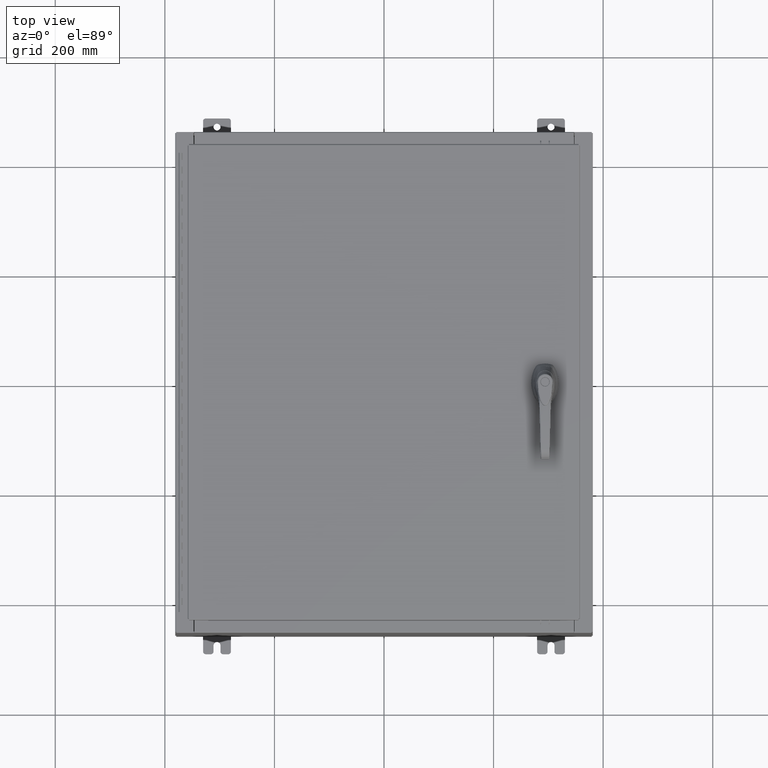
[diagram: clean part render]
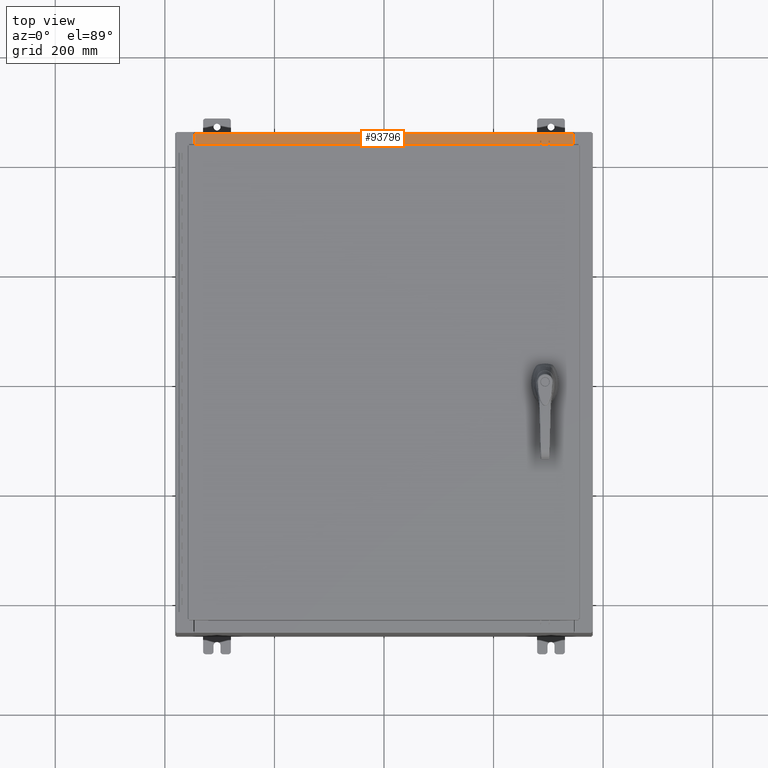
[diagram: same view with one face highlighted and labeled with its STEP entity id]
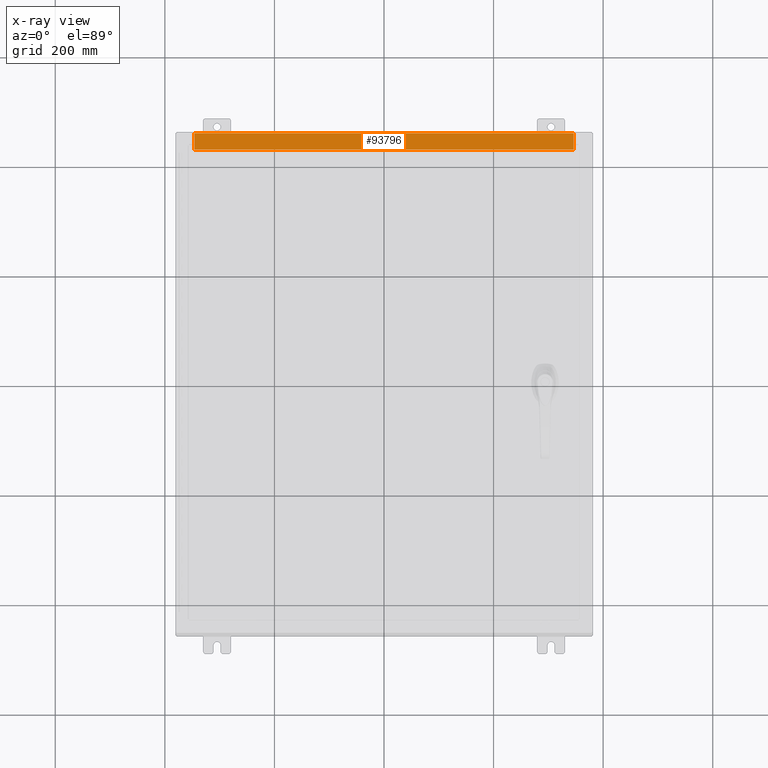
[diagram: x-ray of the same camera — body ghosted, the highlighted face saturated]
A machine part, top view. The second image highlights one B-rep face of the part: STEP entity #93796.
The next image is the same camera in x-ray: the body ghosted, the highlighted face saturated — about 0% of this face is hidden behind the body in this view.
In plain terms, the highlighted planar face has unit normal (0, 0, 1).
Its self-contained STEP definition (entity closure, byte-faithful):
#398 = VECTOR ( 'NONE', #67468, 39.37007874015748100 ) ;
#5646 = VERTEX_POINT ( 'NONE', #11962 ) ;
#7555 = PLANE ( 'NONE',  #33632 ) ;
#11364 = EDGE_CURVE ( 'NONE', #111070, #79480, #78021, .T. ) ;
#11962 = CARTESIAN_POINT ( 'NONE',  ( 13.63720000000000400, -0.08769999999999829300, 7.999999999999997300 ) ) ;
#15096 = VECTOR ( 'NONE', #101220, 39.37007874015748100 ) ;
#20067 = LINE ( 'NONE', #55751, #67924 ) ;
#20504 = CARTESIAN_POINT ( 'NONE',  ( -13.63719999999999800, -0.08769999999999862600, 8.000000000000000000 ) ) ;
#21919 = EDGE_CURVE ( 'NONE', #5646, #103605, #20067, .T. ) ;
#28567 = ORIENTED_EDGE ( 'NONE', *, *, #85919, .F. ) ;
#33632 = AXIS2_PLACEMENT_3D ( 'NONE', #55344, #73382, #74637 ) ;
#38997 = CARTESIAN_POINT ( 'NONE',  ( 13.63720000000000400, -1.300299999999999800, 8.000000000000001800 ) ) ;
#39862 = DIRECTION ( 'NONE',  ( -0.0000000000000000000, 1.000000000000000000, -3.566381192773190000E-015 ) ) ;
#40361 = VECTOR ( 'NONE', #39862, 39.37007874015748100 ) ;
#49682 = ORIENTED_EDGE ( 'NONE', *, *, #21919, .T. ) ;
#55344 = CARTESIAN_POINT ( 'NONE',  ( 6.405177647445352000E-016, 2.852545452309694500E-014, 7.999999999999999100 ) ) ;
#55751 = CARTESIAN_POINT ( 'NONE',  ( 6.299767562217697500E-016, -0.08769999999999862600, 7.999999999999999100 ) ) ;
#67468 = DIRECTION ( 'NONE',  ( -0.0000000000000000000, -1.000000000000000000, 3.566381192773190000E-015 ) ) ;
#67924 = VECTOR ( 'NONE', #84709, 39.37007874015748100 ) ;
#72653 = ORIENTED_EDGE ( 'NONE', *, *, #11364, .F. ) ;
#73382 = DIRECTION ( 'NONE',  ( 8.012929321750104000E-017, 3.566381192773190000E-015, 1.000000000000000000 ) ) ;
#74044 = CARTESIAN_POINT ( 'NONE',  ( -13.63719999999999800, -1.287299999999999400, 8.000000000000003600 ) ) ;
#74637 = DIRECTION ( 'NONE',  ( 0.0000000000000000000, -1.000000000000000000, 3.566381192773190000E-015 ) ) ;
#77037 = LINE ( 'NONE', #38997, #398 ) ;
#78021 = LINE ( 'NONE', #98608, #15096 ) ;
#79480 = VERTEX_POINT ( 'NONE', #74044 ) ;
#83037 = EDGE_CURVE ( 'NONE', #5646, #111070, #77037, .T. ) ;
#84709 = DIRECTION ( 'NONE',  ( -1.000000000000000000, 1.201939398262515800E-016, 8.012929321750060900E-017 ) ) ;
#85919 = EDGE_CURVE ( 'NONE', #79480, #103605, #113704, .T. ) ;
#93796 = ADVANCED_FACE ( 'NONE', ( #103899 ), #7555, .T. ) ;
#97179 = CARTESIAN_POINT ( 'NONE',  ( -13.63719999999999800, -0.07469999999999973900, 8.000000000000000000 ) ) ;
#98608 = CARTESIAN_POINT ( 'NONE',  ( 13.63720000000000400, -1.287300000000000300, 8.000000000000003600 ) ) ;
#99147 = ORIENTED_EDGE ( 'NONE', *, *, #83037, .F. ) ;
#101220 = DIRECTION ( 'NONE',  ( -1.000000000000000000, 0.0000000000000000000, 0.0000000000000000000 ) ) ;
#103605 = VERTEX_POINT ( 'NONE', #20504 ) ;
#103899 = FACE_OUTER_BOUND ( 'NONE', #120697, .T. ) ;
#111070 = VERTEX_POINT ( 'NONE', #114728 ) ;
#113704 = LINE ( 'NONE', #97179, #40361 ) ;
#114728 = CARTESIAN_POINT ( 'NONE',  ( 13.63720000000000400, -1.287300000000000300, 8.000000000000001800 ) ) ;
#120697 = EDGE_LOOP ( 'NONE', ( #28567, #72653, #99147, #49682 ) ) ;